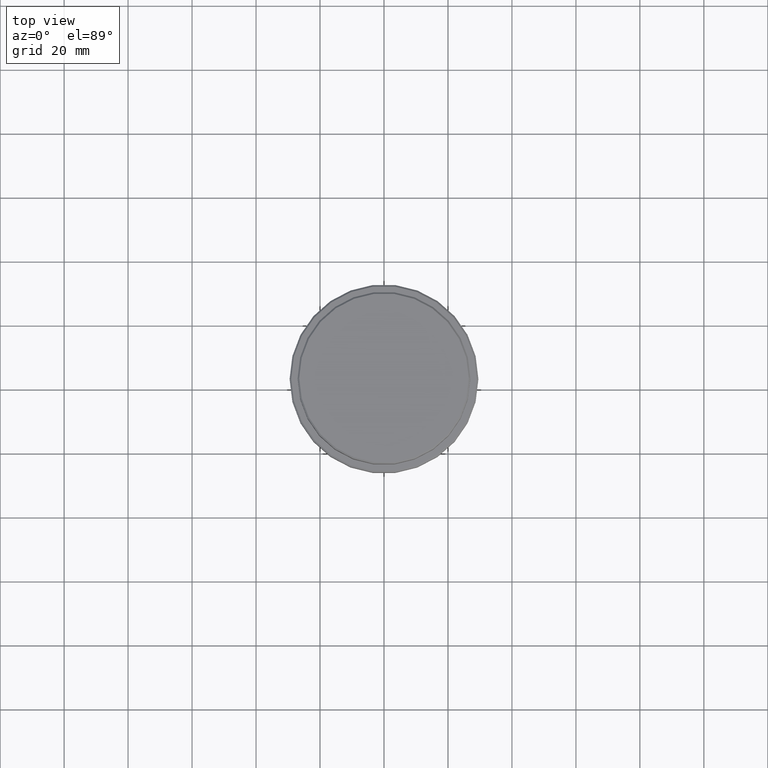
[diagram: clean part render]
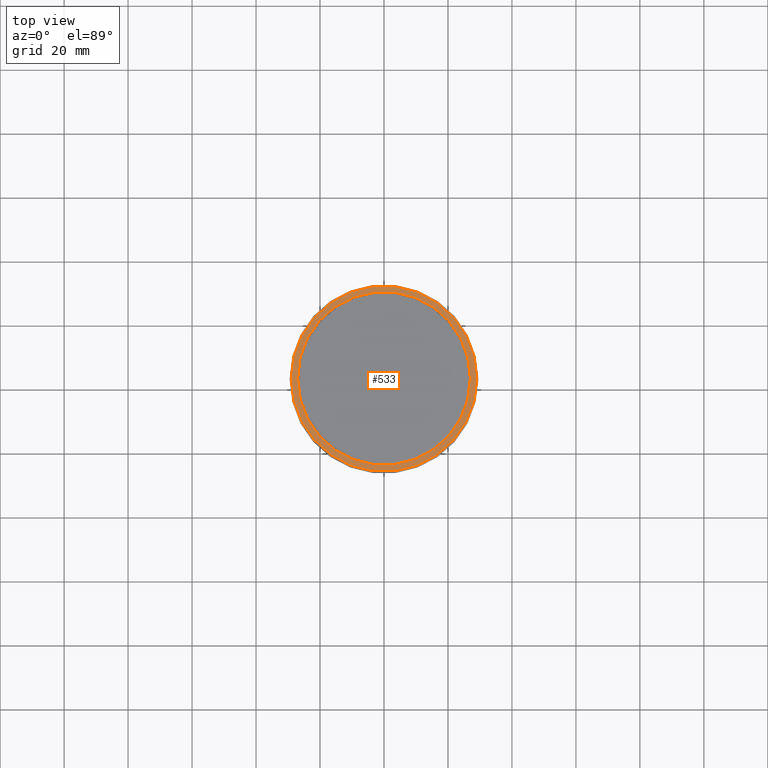
[diagram: same view with one face highlighted and labeled with its STEP entity id]
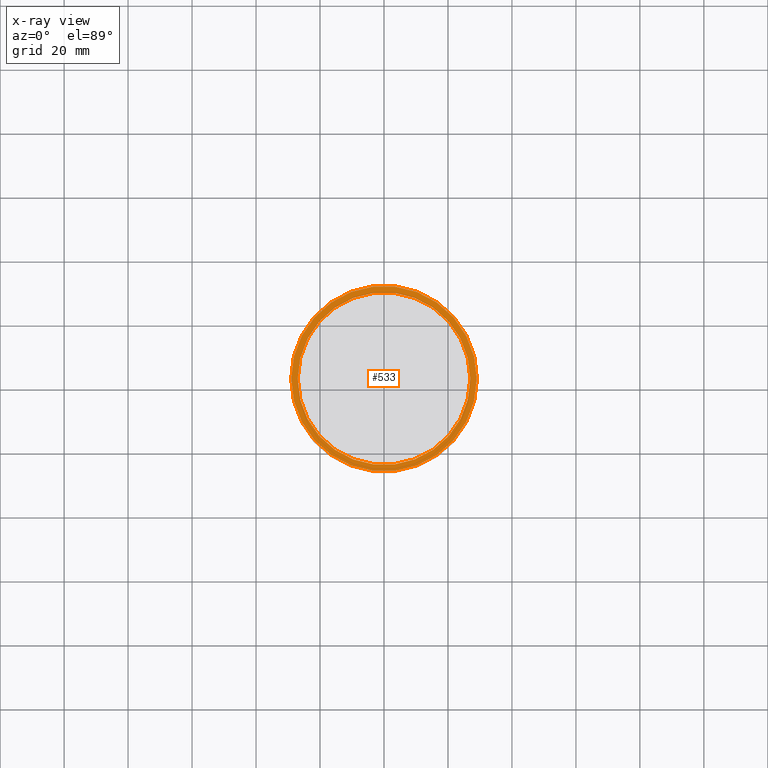
[diagram: x-ray of the same camera — body ghosted, the highlighted face saturated]
A machine part, top view. The second image highlights one B-rep face of the part: STEP entity #533.
The next image is the same camera in x-ray: the body ghosted, the highlighted face saturated — about 0% of this face is hidden behind the body in this view.
In plain terms, the highlighted planar face has unit normal (0, -0, 1).
Its self-contained STEP definition (entity closure, byte-faithful):
#4 = DIRECTION ( 'NONE',  ( 1.000000000000000000, 0.000000000000000000, 0.000000000000000000 ) ) ;
#49 = CARTESIAN_POINT ( 'NONE',  ( 0.000000000000000000, 0.000000000000000000, -12.00000000000000355 ) ) ;
#92 = CARTESIAN_POINT ( 'NONE',  ( 0.000000000000000000, 0.000000000000000000, -12.00000000000000355 ) ) ;
#140 = CARTESIAN_POINT ( 'NONE',  ( 26.99999999999999645, 0.000000000000000000, -12.00000000000000355 ) ) ;
#169 = EDGE_CURVE ( 'NONE', #1035, #881, #976, .T. ) ;
#178 = PLANE ( 'NONE',  #690 ) ;
#192 = AXIS2_PLACEMENT_3D ( 'NONE', #897, #1340, #1120 ) ;
#235 = CARTESIAN_POINT ( 'NONE',  ( -28.99999999999999645, 0.000000000000000000, -12.00000000000000355 ) ) ;
#354 = EDGE_LOOP ( 'NONE', ( #1149, #1203 ) ) ;
#425 = EDGE_CURVE ( 'NONE', #1254, #911, #1053, .T. ) ;
#435 = AXIS2_PLACEMENT_3D ( 'NONE', #92, #546, #4 ) ;
#489 = DIRECTION ( 'NONE',  ( 0.000000000000000000, 0.000000000000000000, -1.000000000000000000 ) ) ;
#520 = DIRECTION ( 'NONE',  ( 1.000000000000000000, 0.000000000000000000, 0.000000000000000000 ) ) ;
#523 = CIRCLE ( 'NONE', #192, 28.99999999999999645 ) ;
#533 = ADVANCED_FACE ( 'NONE', ( #1179, #738 ), #178, .T. ) ;
#546 = DIRECTION ( 'NONE',  ( -0.000000000000000000, -0.000000000000000000, 1.000000000000000000 ) ) ;
#614 = CARTESIAN_POINT ( 'NONE',  ( -26.99999999999999645, 3.306546357697853339E-15, -12.00000000000000355 ) ) ;
#640 = CARTESIAN_POINT ( 'NONE',  ( 0.000000000000000000, 0.000000000000000000, -12.00000000000000355 ) ) ;
#690 = AXIS2_PLACEMENT_3D ( 'NONE', #1385, #731, #520 ) ;
#713 = AXIS2_PLACEMENT_3D ( 'NONE', #640, #1192, #1082 ) ;
#731 = DIRECTION ( 'NONE',  ( 0.000000000000000000, -0.000000000000000000, 1.000000000000000000 ) ) ;
#738 = FACE_BOUND ( 'NONE', #882, .T. ) ;
#874 = ORIENTED_EDGE ( 'NONE', *, *, #920, .T. ) ;
#881 = VERTEX_POINT ( 'NONE', #235 ) ;
#882 = EDGE_LOOP ( 'NONE', ( #943, #874 ) ) ;
#897 = CARTESIAN_POINT ( 'NONE',  ( 0.000000000000000000, 0.000000000000000000, -12.00000000000000355 ) ) ;
#911 = VERTEX_POINT ( 'NONE', #614 ) ;
#920 = EDGE_CURVE ( 'NONE', #911, #1254, #1151, .T. ) ;
#943 = ORIENTED_EDGE ( 'NONE', *, *, #425, .T. ) ;
#976 = CIRCLE ( 'NONE', #435, 28.99999999999999645 ) ;
#980 = AXIS2_PLACEMENT_3D ( 'NONE', #49, #489, #1256 ) ;
#1035 = VERTEX_POINT ( 'NONE', #1306 ) ;
#1053 = CIRCLE ( 'NONE', #980, 26.99999999999999645 ) ;
#1082 = DIRECTION ( 'NONE',  ( 1.000000000000000000, 0.000000000000000000, 0.000000000000000000 ) ) ;
#1120 = DIRECTION ( 'NONE',  ( 1.000000000000000000, 0.000000000000000000, 0.000000000000000000 ) ) ;
#1149 = ORIENTED_EDGE ( 'NONE', *, *, #1156, .T. ) ;
#1151 = CIRCLE ( 'NONE', #713, 26.99999999999999645 ) ;
#1156 = EDGE_CURVE ( 'NONE', #881, #1035, #523, .T. ) ;
#1179 = FACE_OUTER_BOUND ( 'NONE', #354, .T. ) ;
#1192 = DIRECTION ( 'NONE',  ( 0.000000000000000000, 0.000000000000000000, -1.000000000000000000 ) ) ;
#1203 = ORIENTED_EDGE ( 'NONE', *, *, #169, .T. ) ;
#1254 = VERTEX_POINT ( 'NONE', #140 ) ;
#1256 = DIRECTION ( 'NONE',  ( 1.000000000000000000, 0.000000000000000000, 0.000000000000000000 ) ) ;
#1306 = CARTESIAN_POINT ( 'NONE',  ( 28.99999999999999645, 3.582091887506007817E-15, -12.00000000000000355 ) ) ;
#1340 = DIRECTION ( 'NONE',  ( -0.000000000000000000, -0.000000000000000000, 1.000000000000000000 ) ) ;
#1385 = CARTESIAN_POINT ( 'NONE',  ( 0.000000000000000000, 26.49999999999999645, -12.00000000000000355 ) ) ;